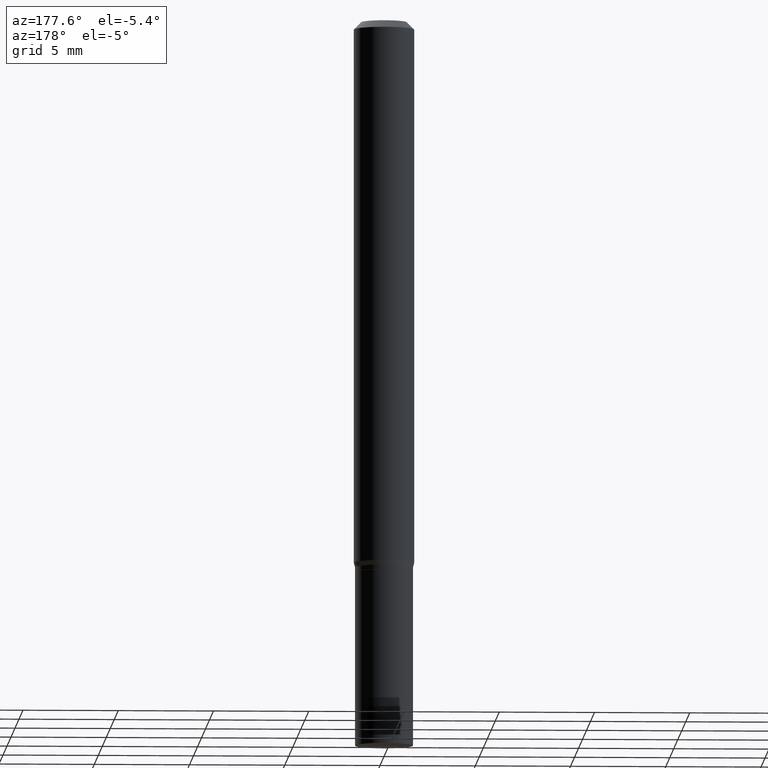
[diagram: clean part render]
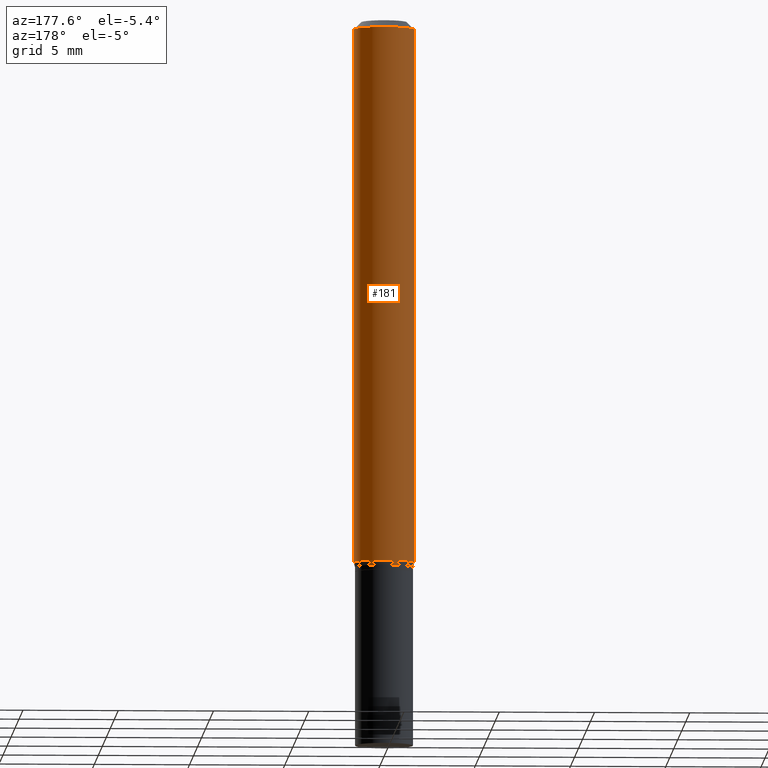
[diagram: same view with one face highlighted and labeled with its STEP entity id]
A machine part, auxiliary view. The second image highlights one B-rep face of the part: STEP entity #181.
In plain terms, the highlighted cylindrical surface (edge-blend (fillet) strip) has radius 1.5875 mm, axis along (-0, 0, 1).
Its self-contained STEP definition (entity closure, byte-faithful):
#21 = EDGE_CURVE ( 'NONE', #164, #240, #238, .T. ) ;
#27 = EDGE_LOOP ( 'NONE', ( #123, #154, #340, #98 ) ) ;
#28 = LINE ( 'NONE', #319, #373 ) ;
#30 = CARTESIAN_POINT ( 'NONE',  ( 0.000000000000000000, 0.000000000000000000, 0.000000000000000000 ) ) ;
#42 = CARTESIAN_POINT ( 'NONE',  ( -0.06250000000000000000, -3.468708738667092242E-15, -1.120669872981078674 ) ) ;
#43 = VECTOR ( 'NONE', #208, 39.37007874015748143 ) ;
#64 = CYLINDRICAL_SURFACE ( 'NONE', #94, 0.06250000000000000000 ) ;
#66 = CARTESIAN_POINT ( 'NONE',  ( 0.06250000000000000000, -4.364351673553916694E-16, 3.047610484872459871E-30 ) ) ;
#70 = DIRECTION ( 'NONE',  ( 1.000000000000000000, -6.982962677686266711E-15, 4.876176775795935793E-29 ) ) ;
#94 = AXIS2_PLACEMENT_3D ( 'NONE', #30, #139, #70 ) ;
#98 = ORIENTED_EDGE ( 'NONE', *, *, #21, .F. ) ;
#103 = AXIS2_PLACEMENT_3D ( 'NONE', #191, #432, #183 ) ;
#115 = CARTESIAN_POINT ( 'NONE',  ( -0.06250000000000000000, -1.538495874449838155E-15, -0.01499999999999999944 ) ) ;
#123 = ORIENTED_EDGE ( 'NONE', *, *, #393, .T. ) ;
#127 = CIRCLE ( 'NONE', #403, 0.06250000000000000000 ) ;
#131 = DIRECTION ( 'NONE',  ( -2.445468806185136877E-29, 3.491481338843145188E-15, 1.000000000000000000 ) ) ;
#139 = DIRECTION ( 'NONE',  ( -2.445468806185136597E-29, 3.491481338843145583E-15, 1.000000000000000000 ) ) ;
#154 = ORIENTED_EDGE ( 'NONE', *, *, #160, .T. ) ;
#160 = EDGE_CURVE ( 'NONE', #346, #335, #28, .T. ) ;
#164 = VERTEX_POINT ( 'NONE', #170 ) ;
#170 = CARTESIAN_POINT ( 'NONE',  ( 0.06250000000000000000, -4.349233115872546527E-15, -1.120669872981078674 ) ) ;
#181 = ADVANCED_FACE ( 'NONE', ( #213 ), #64, .T. ) ;
#183 = DIRECTION ( 'NONE',  ( 1.000000000000000000, -6.982962677686270655E-15, 0.000000000000000000 ) ) ;
#190 = DIRECTION ( 'NONE',  ( -2.445468806185136597E-29, 3.491481338843145583E-15, 1.000000000000000000 ) ) ;
#191 = CARTESIAN_POINT ( 'NONE',  ( 2.740563216406686834E-29, -3.912797948517154069E-15, -1.120669872981078674 ) ) ;
#208 = DIRECTION ( 'NONE',  ( -2.445468806185136877E-29, 3.491481338843145188E-15, 1.000000000000000000 ) ) ;
#213 = FACE_OUTER_BOUND ( 'NONE', #27, .T. ) ;
#238 = LINE ( 'NONE', #66, #43 ) ;
#240 = VERTEX_POINT ( 'NONE', #276 ) ;
#276 = CARTESIAN_POINT ( 'NONE',  ( 0.06250000000000000000, -4.888073874380388472E-16, -0.01499999999999999944 ) ) ;
#319 = CARTESIAN_POINT ( 'NONE',  ( -0.06250000000000000000, 4.440892098500626162E-16, -3.074334431409316114E-30 ) ) ;
#324 = DIRECTION ( 'NONE',  ( 1.000000000000000000, -6.982962677686266711E-15, 0.000000000000000000 ) ) ;
#335 = VERTEX_POINT ( 'NONE', #115 ) ;
#340 = ORIENTED_EDGE ( 'NONE', *, *, #347, .F. ) ;
#346 = VERTEX_POINT ( 'NONE', #42 ) ;
#347 = EDGE_CURVE ( 'NONE', #240, #335, #127, .T. ) ;
#373 = VECTOR ( 'NONE', #131, 39.37007874015748143 ) ;
#390 = CIRCLE ( 'NONE', #103, 0.06250000000000000000 ) ;
#393 = EDGE_CURVE ( 'NONE', #164, #346, #390, .T. ) ;
#400 = CARTESIAN_POINT ( 'NONE',  ( 3.668203209277705088E-31, -5.237222008264718399E-17, -0.01499999999999999944 ) ) ;
#403 = AXIS2_PLACEMENT_3D ( 'NONE', #400, #190, #324 ) ;
#432 = DIRECTION ( 'NONE',  ( -2.445468806185136597E-29, 3.491481338843145583E-15, 1.000000000000000000 ) ) ;